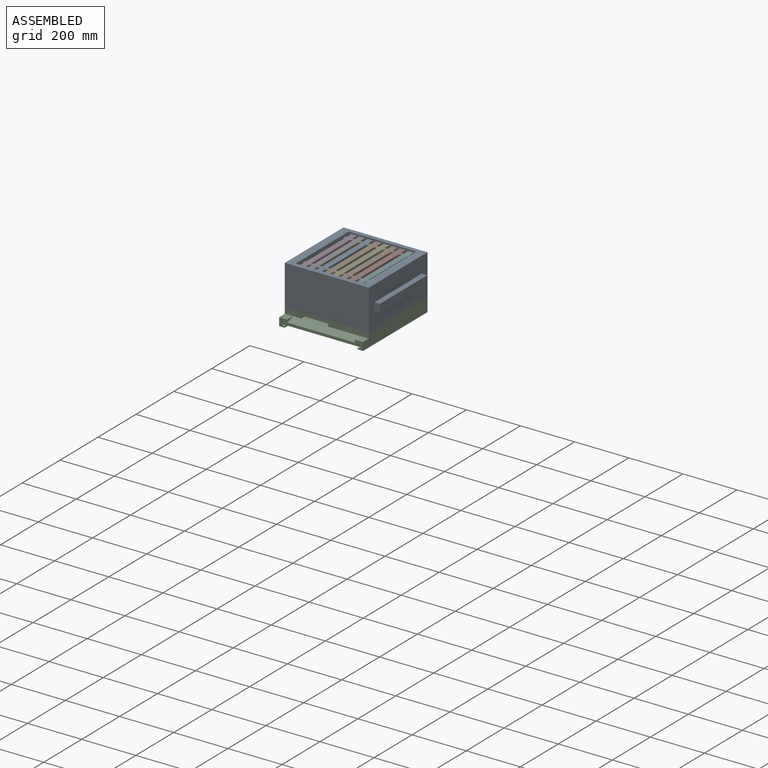
[diagram: assembled view]
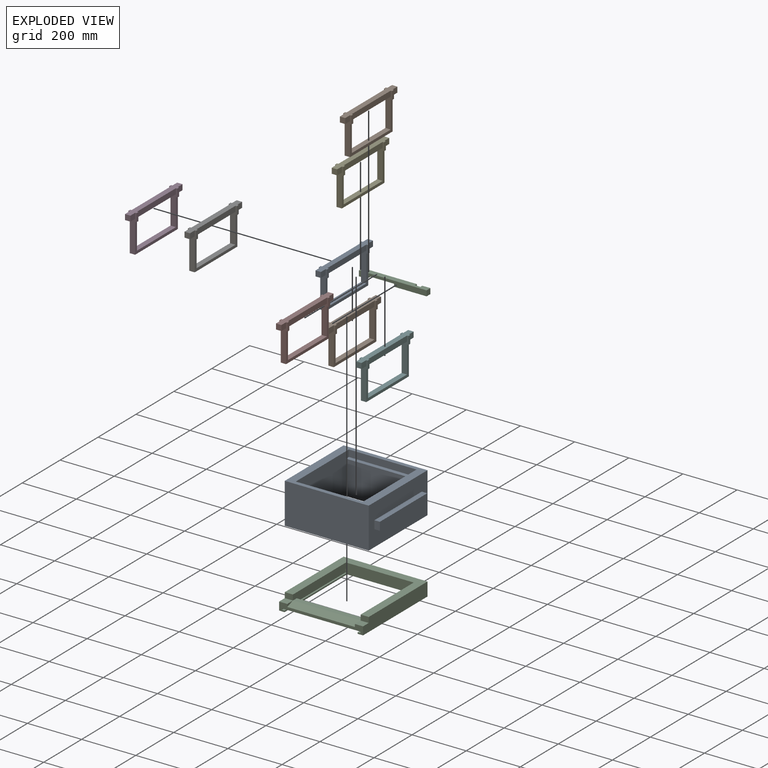
[diagram: exploded view]
GUIDED TOUR — MATED ASSEMBLY (Onshape document d58939f9e8c85b8631f3f8b9, AutoMate assembly d58939f9e8c85b8631f3f8b9_389e96e7b3c69d62c255b484_097b39c04459ce8ab4519b38_default)

This assembly has 11 components, labeled P0..P10 below (a component is one placed occurrence of a part; the same part can appear more than once), held together by 9 mates. A mate is a constraint between two components; its type names the relative motion it leaves free:
  FASTENED — locks the two components together rigidly (no relative motion).
Axis/direction vectors are unit vectors and 'through' points are millimeter coordinates, both in the assembly's world frame.

MATES
  1. FASTENED "Fastened 4": P3 <-> P6, direction (1.000, 0.000, 0.000) through (636.38, 176.40, 158.30) mm
  2. FASTENED "Fastened 4": P7 <-> P5, direction (1.000, 0.000, 0.000) through (816.38, 176.40, 158.30) mm
  3. FASTENED "Fastened 2": P0 <-> P10, direction (0.000, 0.000, -1.000) through (880.38, -86.10, 28.30) mm
  4. FASTENED "Fastened 1": P6 <-> P8, direction (1.000, 0.000, 0.000) through (666.38, 176.40, 158.30) mm
  5. FASTENED "Fastened 4": P4 <-> P9, direction (1.000, 0.000, 0.000) through (756.38, 176.40, 158.30) mm
  6. FASTENED "Fastened 3": P10 <-> P2, direction (1.000, 0.000, 0.000) through (600.38, -86.10, 18.30) mm
  7. FASTENED "Fastened 4": P8 <-> P1, direction (1.000, 0.000, 0.000) through (696.38, 176.40, 158.30) mm
  8. FASTENED "Fastened 6": P7 <-> P9, direction (-1.000, 0.000, 0.000) through (786.38, 176.40, 158.30) mm
  9. FASTENED "Fastened 5": P1 <-> P4, direction (1.000, 0.000, 0.000) through (726.38, -38.60, 158.30) mm

ASSEMBLY ORDER
  1. P8 — the base component [order verified]
  2. P1 [order verified]
  3. P0 [order verified]
  4. P4 [order verified]
  5. P9 [order verified]
  6. P7 [order verified]
  7. P5 [order verified]
  8. P6 [order verified]
  9. P3 [order verified]
  10. P10 [order verified]
  11. P2 [order verified]
Order-tag legend:
  [order verified] — this step's position reverses a verified removal order: the component was checked to insert without passing through the ones already placed.

Of the 11 components, 11 carry the full construction recipe — the FeatureScript program that regenerates the part's solid from scratch; the rest are supplied as boundary geometry only.
Each toured component is shown spotlighted twice — in the assembled view, then in the exploded view, where a leader line traces a displaced component back to its assembled socket (saturated green if recipe-attached, orange if geometry-only; every other component desaturated gray) — followed by its recipe or geometry summary and the mates that hold it.
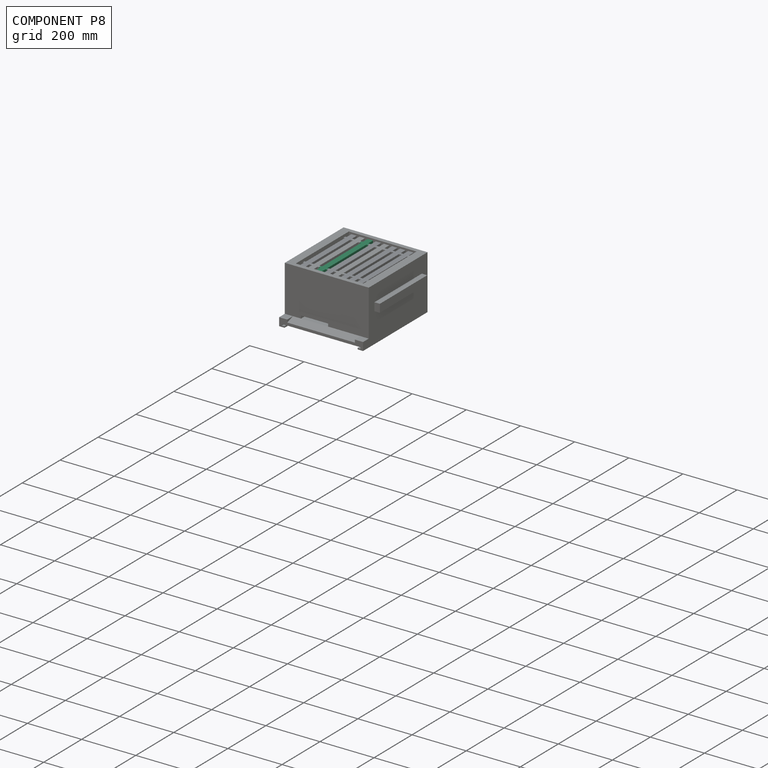
[diagram: component P8 — assembled]
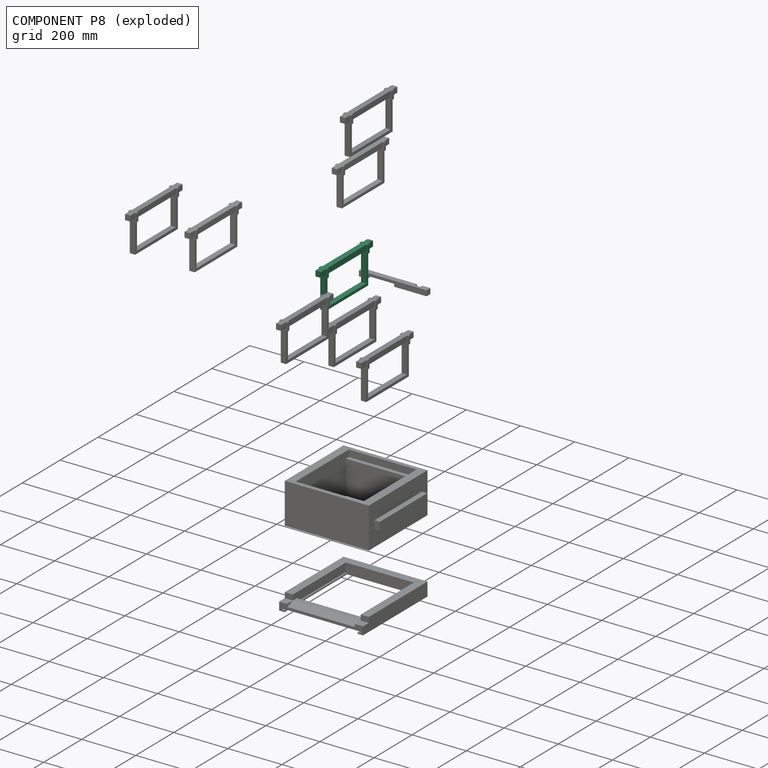
[diagram: component P8 — exploded]
COMPONENT P8 — same part as P1 (CADFS 00818178); its construction recipe is shown at P1.
Held by: FASTENED mate "Fastened 1" to P6; FASTENED mate "Fastened 4" to P1.
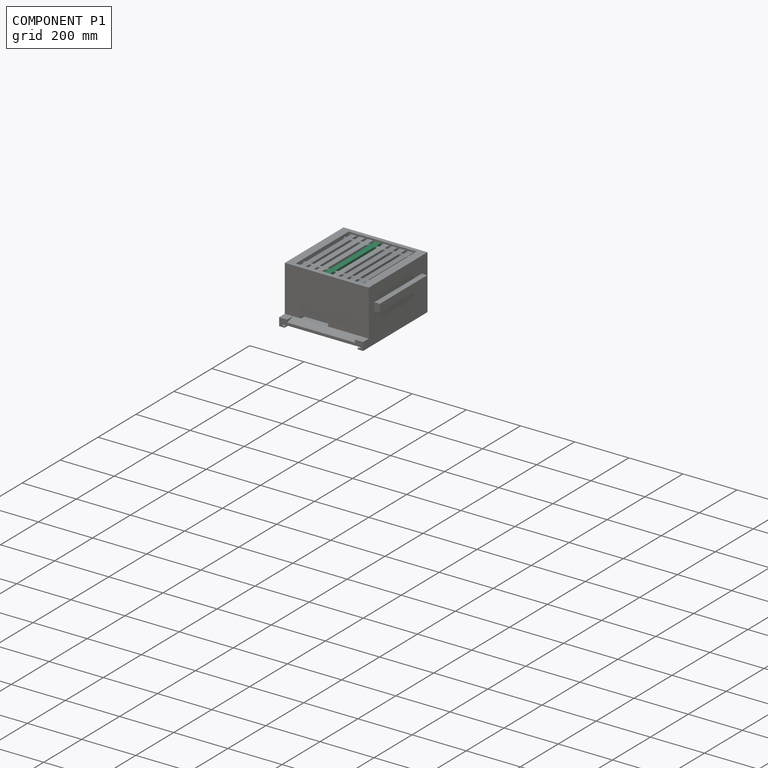
[diagram: component P1 — assembled]
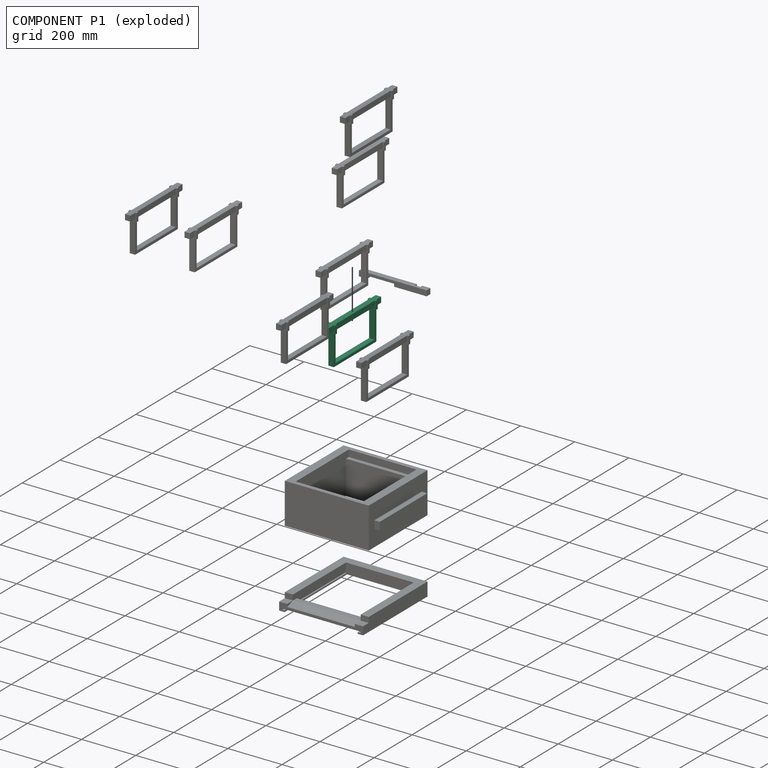
[diagram: component P1 — exploded]
COMPONENT P1 — recipe-attached (CADFS 00818178, mesh-verified: the recipe's output STEP matches this component's geometry to below the mesh-comparison resolution (tessellation chordal tolerance ~0.465 mm)).
Held by: FASTENED mate "Fastened 4" to P8; FASTENED mate "Fastened 5" to P4.
Construction recipe (FeatureScript — the CAD program that rebuilds this solid; sketch coordinates are in the units given by the * unit suffixes, e.g. mm):

FeatureScript 1511;
import(path : "onshape/std/geometry.fs", version : "1511.0");
import(path : "onshape/std/common.fs", version : "1511.0");
const mm = millimeter;
const VERTEX = EntityType.VERTEX;
const EDGE = EntityType.EDGE;
const FACE = EntityType.FACE;
const BODY = EntityType.BODY;
function v(x, y){return vector(x, y);}
function OD(order){return orderDisambiguation(order);}
function OSD(set){return originalSetDisambiguation(set);}
function TD(topology){return topologyDisambiguation(topology);}
function TDD(query){return trueDependencyDisambiguation(query);}
function sQuery(a, b, c) {return sketchEntityQuery(a, b, c);}

annotation { "Feature Type Name" : "Feature", "Feature Type Description" : "" }
export const myFeature = defineFeature(function(context is Context, id is Id, definition is map)
    precondition{}
    {
        {
            var Q0;
            Q0=qCreatedBy(makeId("Top.planeOp"),FACE);
            var sketch = newSketch(context, id + "F0", { "sketchPlane" : qUnion([Q0])});
            skLineSegment(sketch, "E0.bottom", {"start": v(10, -137.5) * mm, "end": v(-10, -137.5) * mm});
            skLineSegment(sketch, "E0.top", {"start": v(10, 137.5) * mm, "end": v(-10, 137.5) * mm});
            skLineSegment(sketch, "E0.left", {"start": v(10, -137.5) * mm, "end": v(10, 137.5) * mm});
            skLineSegment(sketch, "E0.right", {"start": v(-10, -137.5) * mm, "end": v(-10, 137.5) * mm});
            skPoint(sketch, "E0.middle", {"position": v(0, 0) * mm});
            skSolve(sketch);
        }
        {
            var Q0;
            Q0=makeQuery(id+"F0.imprint","IMPRINT",FACE,{"disambiguationData":[TD([[makeQuery(id+"F0.imprint","IMPRINT",EDGE,{"derivedFrom":sQuery(id+"F0.wireOp",EDGE,"E0.bottom")}),-1.0]])]});
            extrude(context, id + "F1", {"entities" : qUnion([Q0]), "endBound" : BoundingType.SYMMETRIC, "depth" : 20 * mm, "offsetDistance" : 25 * mm});
        }
        {
            var Q0;
            Q0=makeQuery(id+"F1.opExtrude","SWEPT_FACE",FACE,{"disambiguationData":[OSD([sQuery(id+"F0.wireOp",EDGE,"E0.bottom")])]});
            cPlane(context, id + "F2", {"entities" : qUnion([Q0]), "cplaneType" : CPlaneType.OFFSET, "offset" : 25 * mm, "oppositeDirection" : true, "width" : 150 * mm, "height" : 150 * mm});
        }
        {
            var Q0;
            Q0=qCreatedBy(id+"F2.planeOp",FACE);
            var sketch = newSketch(context, id + "F3", { "sketchPlane" : qUnion([Q0])});
            skLineSegment(sketch, "E1.top", {"start": v(15, 10) * mm, "end": v(-15, 10) * mm});
            skPoint(sketch, "E1.middle", {"position": v(0, 0) * mm});
            skLineSegment(sketch, "E2.bottom", {"start": v(-10, 0) * mm, "end": v(10, 0) * mm});
            skLineSegment(sketch, "E2.top", {"start": v(-10, -130) * mm, "end": v(10, -130) * mm});
            skLineSegment(sketch, "E2.left", {"start": v(-10, 0) * mm, "end": v(-10, -130) * mm});
            skLineSegment(sketch, "E2.right", {"start": v(10, 0) * mm, "end": v(10, -130) * mm});
            skLineSegment(sketch, "E3", {"start": v(-15, 10) * mm, "end": v(-15, -20) * mm});
            skLineSegment(sketch, "E4", {"start": v(-15, -20) * mm, "end": v(15, -20) * mm});
            skLineSegment(sketch, "E5", {"start": v(15, -20) * mm, "end": v(15, 10) * mm});
            skSolve(sketch);
        }
        {
            var Q0;
            {var subQ5=sQuery(id+"F3.wireOp",EDGE,"E2.top");Q0=makeQuery(id+"F3.imprint","IMPRINT",FACE,{"disambiguationData":[TD([[makeQuery(id+"F3.imprint","IMPRINT",EDGE,{"derivedFrom":subQ5}),1.0]])]});}
            var Q1;
            {var subQ5=sQuery(id+"F3.wireOp",EDGE,"E2.bottom");Q1=makeQuery(id+"F3.imprint","IMPRINT",FACE,{"disambiguationData":[TD([[makeQuery(id+"F3.imprint","IMPRINT",EDGE,{"derivedFrom":subQ5}),-1.0]])]});}
            var Q2;
            Q2=makeQuery(id+"F3.imprint","IMPRINT",FACE,{"disambiguationData":[TD([[makeQuery(id+"F3.imprint","IMPRINT",EDGE,{"derivedFrom":sQuery(id+"F3.wireOp",EDGE,"E1.top")}),1.0]])]});
            extrude(context, id + "F4", {"entities" : qUnion([Q0, Q1, Q2]), "operationType" : NewBodyOperationType.ADD, "oppositeDirection" : true, "depth" : 10 * mm, "offsetDistance" : 25 * mm});
        }
        {
            var Q0;
            Q0=makeQuery(id+"F1.opExtrude","SWEPT_FACE",FACE,{"disambiguationData":[OSD([sQuery(id+"F0.wireOp",EDGE,"E0.top")])]});
            cPlane(context, id + "F5", {"entities" : qUnion([Q0]), "cplaneType" : CPlaneType.OFFSET, "offset" : 25 * mm, "oppositeDirection" : true, "width" : 150 * mm, "height" : 150 * mm});
        }
        {
            var Q0;
            Q0=qCreatedBy(id+"F5.planeOp",FACE);
            var sketch = newSketch(context, id + "F6", { "sketchPlane" : qUnion([Q0])});
            skLineSegment(sketch, "E6.top", {"start": v(15, 10) * mm, "end": v(-15, 10) * mm});
            skPoint(sketch, "E6.middle", {"position": v(0, 0) * mm});
            skLineSegment(sketch, "E7.bottom", {"start": v(-10, 0) * mm, "end": v(10, 0) * mm});
            skLineSegment(sketch, "E7.top", {"start": v(-10, -130) * mm, "end": v(10, -130) * mm});
            skLineSegment(sketch, "E7.left", {"start": v(-10, 0) * mm, "end": v(-10, -130) * mm});
            skLineSegment(sketch, "E7.right", {"start": v(10, 0) * mm, "end": v(10, -130) * mm});
            skLineSegment(sketch, "E8", {"start": v(-15, 10) * mm, "end": v(-15, -20) * mm});
            skLineSegment(sketch, "E9", {"start": v(-15, -20) * mm, "end": v(15, -20) * mm});
            skLineSegment(sketch, "E10", {"start": v(15, -20) * mm, "end": v(15, 10) * mm});
            skSolve(sketch);
        }
        {
            var Q0;
            {var subQ5=sQuery(id+"F6.wireOp",EDGE,"E7.bottom");Q0=makeQuery(id+"F6.imprint","IMPRINT",FACE,{"disambiguationData":[TD([[makeQuery(id+"F6.imprint","IMPRINT",EDGE,{"derivedFrom":subQ5}),-1.0]])]});}
            var Q1;
            {var subQ5=sQuery(id+"F6.wireOp",EDGE,"E7.top");Q1=makeQuery(id+"F6.imprint","IMPRINT",FACE,{"disambiguationData":[TD([[makeQuery(id+"F6.imprint","IMPRINT",EDGE,{"derivedFrom":subQ5}),1.0]])]});}
            var Q2;
            Q2=makeQuery(id+"F6.imprint","IMPRINT",FACE,{"disambiguationData":[TD([[makeQuery(id+"F6.imprint","IMPRINT",EDGE,{"derivedFrom":sQuery(id+"F6.wireOp",EDGE,"E6.top")}),1.0]])]});
            extrude(context, id + "F7", {"entities" : qUnion([Q0, Q1, Q2]), "operationType" : NewBodyOperationType.ADD, "oppositeDirection" : true, "depth" : 10 * mm, "offsetDistance" : 25 * mm});
        }
        {
            var Q0;
            Q0=makeQuery(id+"F7.opExtrude","SWEPT_FACE",FACE,{"disambiguationData":[OSD([sQuery(id+"F6.wireOp",EDGE,"E7.top")])]});
            var sketch = newSketch(context, id + "F8", { "sketchPlane" : qUnion([Q0])});
            skLineSegment(sketch, "E11.bottom", {"start": v(10, -102.5) * mm, "end": v(-10, -102.5) * mm});
            skLineSegment(sketch, "E11.top", {"start": v(10, 102.5) * mm, "end": v(-10, 102.5) * mm});
            skLineSegment(sketch, "E11.left", {"start": v(10, -102.5) * mm, "end": v(10, 102.5) * mm});
            skLineSegment(sketch, "E11.right", {"start": v(-10, -102.5) * mm, "end": v(-10, 102.5) * mm});
            skSolve(sketch);
        }
        {
            var Q0;
            Q0=makeQuery(id+"F8.imprint","IMPRINT",FACE,{"disambiguationData":[TD([[makeQuery(id+"F8.imprint","IMPRINT",EDGE,{"derivedFrom":sQuery(id+"F8.wireOp",EDGE,"E11.bottom")}),-1.0]])]});
            extrude(context, id + "F9", {"entities" : qUnion([Q0]), "operationType" : NewBodyOperationType.ADD, "oppositeDirection" : true, "depth" : 10 * mm, "offsetDistance" : 25 * mm});
        }
        {
            var Q0;
            Q0=qCreatedBy(makeId("Top.planeOp"),FACE);
            var sketch = newSketch(context, id + "F10", { "sketchPlane" : qUnion([Q0])});
            skLineSegment(sketch, "E12.bottom", {"start": v(2.5, -110) * mm, "end": v(-2.5, -110) * mm});
            skLineSegment(sketch, "E12.top", {"start": v(2.5, 110) * mm, "end": v(-2.5, 110) * mm});
            skLineSegment(sketch, "E12.left", {"start": v(2.5, -110) * mm, "end": v(2.5, 110) * mm});
            skLineSegment(sketch, "E12.right", {"start": v(-2.5, -110) * mm, "end": v(-2.5, 110) * mm});
            skPoint(sketch, "E12.middle", {"position": v(0, 0) * mm});
            skSolve(sketch);
        }
        {
            var Q0;
            Q0 = qSketchRegion(id + "F10", true);
            extrude(context, id + "F11", {"entities" : qUnion([Q0]), "operationType" : NewBodyOperationType.ADD, "oppositeDirection" : true, "depth" : 15 * mm, "offsetDistance" : 25 * mm});
        }
    });
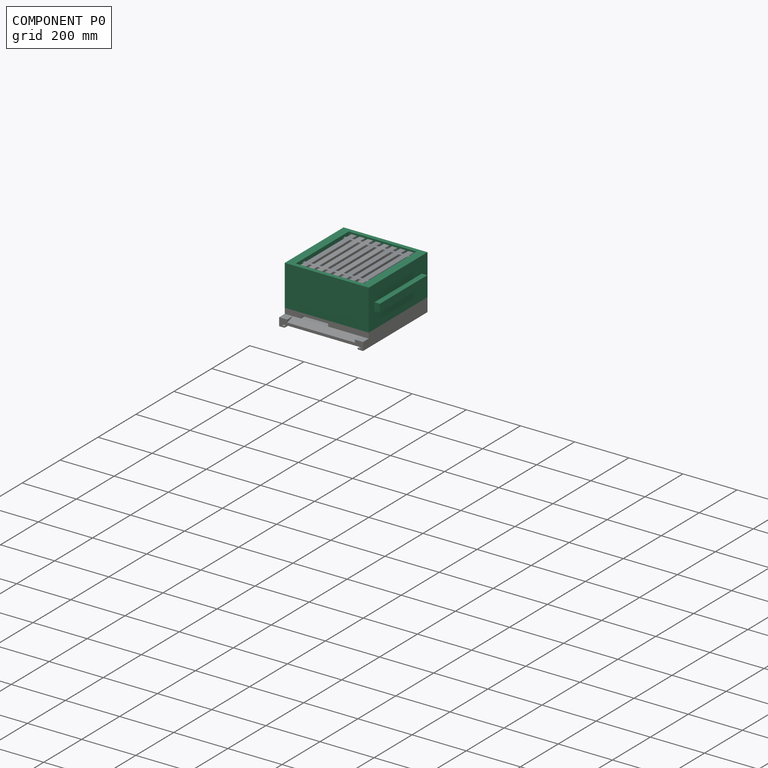
[diagram: component P0 — assembled]
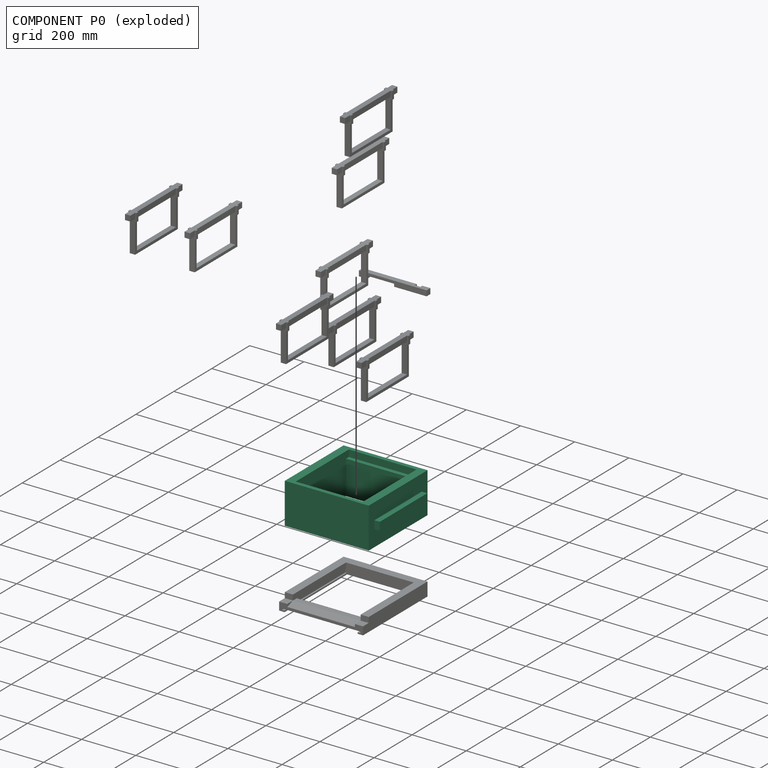
[diagram: component P0 — exploded]
COMPONENT P0 — recipe-attached (CADFS 00818176, mesh-verified: the recipe's output STEP matches this component's geometry to below the mesh-comparison resolution (tessellation chordal tolerance ~0.737 mm)).
Held by: FASTENED mate "Fastened 2" to P10.
Construction recipe (FeatureScript — the CAD program that rebuilds this solid; sketch coordinates are in the units given by the * unit suffixes, e.g. mm):

FeatureScript 1511;
import(path : "onshape/std/geometry.fs", version : "1511.0");
import(path : "onshape/std/common.fs", version : "1511.0");
const mm = millimeter;
const VERTEX = EntityType.VERTEX;
const EDGE = EntityType.EDGE;
const FACE = EntityType.FACE;
const BODY = EntityType.BODY;
function v(x, y){return vector(x, y);}
function OD(order){return orderDisambiguation(order);}
function OSD(set){return originalSetDisambiguation(set);}
function TD(topology){return topologyDisambiguation(topology);}
function TDD(query){return trueDependencyDisambiguation(query);}
function sQuery(a, b, c) {return sketchEntityQuery(a, b, c);}

annotation { "Feature Type Name" : "Feature", "Feature Type Description" : "" }
export const myFeature = defineFeature(function(context is Context, id is Id, definition is map)
    precondition{}
    {
        {
            var Q0;
            Q0=qCreatedBy(makeId("Top.planeOp"),FACE);
            var sketch = newSketch(context, id + "F0", { "sketchPlane" : qUnion([Q0])});
            skLineSegment(sketch, "E0.bottom", {"start": v(125, -125) * mm, "end": v(-125, -125) * mm});
            skLineSegment(sketch, "E0.top", {"start": v(125, 125) * mm, "end": v(-125, 125) * mm});
            skLineSegment(sketch, "E0.left", {"start": v(125, -125) * mm, "end": v(125, 125) * mm});
            skLineSegment(sketch, "E0.right", {"start": v(-125, -125) * mm, "end": v(-125, 125) * mm});
            skPoint(sketch, "E0.middle", {"position": v(0, 0) * mm});
            skLineSegment(sketch, "E1.bottom", {"start": v(155, -155) * mm, "end": v(-155, -155) * mm});
            skLineSegment(sketch, "E1.top", {"start": v(155, 155) * mm, "end": v(-155, 155) * mm});
            skLineSegment(sketch, "E1.left", {"start": v(155, -155) * mm, "end": v(155, 155) * mm});
            skLineSegment(sketch, "E1.right", {"start": v(-155, -155) * mm, "end": v(-155, 155) * mm});
            skSolve(sketch);
        }
        {
            var Q0;
            Q0=makeQuery(id+"F0.imprint","IMPRINT",FACE,{"disambiguationData":[TD([[makeQuery(id+"F0.imprint","IMPRINT",EDGE,{"derivedFrom":sQuery(id+"F0.wireOp",EDGE,"E0.bottom")}),1.0]])]});
            extrude(context, id + "F1", {"entities" : qUnion([Q0]), "endBound" : BoundingType.SYMMETRIC, "depth" : 150 * mm, "offsetDistance" : 25.4 * mm});
        }
        {
            var Q0;
            Q0=makeQuery(id+"F1.opExtrude","CAP_FACE",FACE,{"disambiguationData":[OSD([sQuery(id+"F0.wireOp",EDGE,"E0.bottom"),sQuery(id+"F0.wireOp",EDGE,"E0.top"),sQuery(id+"F0.wireOp",EDGE,"E0.left"),sQuery(id+"F0.wireOp",EDGE,"E0.right"),sQuery(id+"F0.wireOp",EDGE,"E1.bottom"),sQuery(id+"F0.wireOp",EDGE,"E1.top"),sQuery(id+"F0.wireOp",EDGE,"E1.left"),sQuery(id+"F0.wireOp",EDGE,"E1.right")])],"isStart":false});
            cPlane(context, id + "F2", {"entities" : qUnion([Q0]), "cplaneType" : CPlaneType.OFFSET, "offset" : 0 * mm, "width" : 152.4 * mm, "height" : 152.4 * mm});
        }
        {
            var Q0;
            Q0=qCreatedBy(id+"F2.planeOp",FACE);
            var sketch = newSketch(context, id + "F3", { "sketchPlane" : qUnion([Q0])});
            skLineSegment(sketch, "E2.bottom", {"start": v(125, -140) * mm, "end": v(-125, -140) * mm});
            skLineSegment(sketch, "E2.top", {"start": v(125, 140) * mm, "end": v(-125, 140) * mm});
            skLineSegment(sketch, "E2.left", {"start": v(125, -140) * mm, "end": v(125, 140) * mm});
            skLineSegment(sketch, "E2.right", {"start": v(-125, -140) * mm, "end": v(-125, 140) * mm});
            skPoint(sketch, "E2.middle", {"position": v(0, 0) * mm});
            skSolve(sketch);
        }
        {
            var Q0;
            Q0=makeQuery(id+"F3.imprint","IMPRINT",FACE,{"disambiguationData":[TD([[makeQuery(id+"F3.imprint","IMPRINT",EDGE,{"derivedFrom":sQuery(id+"F3.wireOp",EDGE,"E2.bottom")}),-1.0]])]});
            extrude(context, id + "F4", {"entities" : qUnion([Q0]), "operationType" : NewBodyOperationType.REMOVE, "oppositeDirection" : true, "depth" : 25 * mm, "offsetDistance" : 25 * mm});
        }
        {
            var Q0;
            Q0=makeQuery(id+"F1.opExtrude","SWEPT_FACE",FACE,{"disambiguationData":[OSD([sQuery(id+"F0.wireOp",EDGE,"E1.right")])]});
            var sketch = newSketch(context, id + "F5", { "sketchPlane" : qUnion([Q0])});
            skLineSegment(sketch, "E3.bottom", {"start": v(125, -15) * mm, "end": v(-125, -15) * mm});
            skLineSegment(sketch, "E3.top", {"start": v(125, 15) * mm, "end": v(-125, 15) * mm});
            skLineSegment(sketch, "E3.left", {"start": v(125, -15) * mm, "end": v(125, 15) * mm});
            skLineSegment(sketch, "E3.right", {"start": v(-125, -15) * mm, "end": v(-125, 15) * mm});
            skPoint(sketch, "E3.middle", {"position": v(0, 0) * mm});
            skSolve(sketch);
        }
        {
            var Q0;
            Q0=makeQuery(id+"F5.imprint","IMPRINT",FACE,{"disambiguationData":[TD([[makeQuery(id+"F5.imprint","IMPRINT",EDGE,{"derivedFrom":sQuery(id+"F5.wireOp",EDGE,"E3.bottom")}),-1.0]])]});
            extrude(context, id + "F6", {"entities" : qUnion([Q0]), "operationType" : NewBodyOperationType.ADD, "depth" : 20 * mm, "offsetDistance" : 25 * mm});
        }
        {
            var Q0;
            Q0=makeQuery(id+"F1.opExtrude","SWEPT_FACE",FACE,{"disambiguationData":[OSD([sQuery(id+"F0.wireOp",EDGE,"E1.left")])]});
            var sketch = newSketch(context, id + "F7", { "sketchPlane" : qUnion([Q0])});
            skLineSegment(sketch, "E4.bottom", {"start": v(125, -15) * mm, "end": v(-125, -15) * mm});
            skLineSegment(sketch, "E4.top", {"start": v(125, 15) * mm, "end": v(-125, 15) * mm});
            skLineSegment(sketch, "E4.left", {"start": v(125, -15) * mm, "end": v(125, 15) * mm});
            skLineSegment(sketch, "E4.right", {"start": v(-125, -15) * mm, "end": v(-125, 15) * mm});
            skPoint(sketch, "E4.middle", {"position": v(0, 0) * mm});
            skSolve(sketch);
        }
        {
            var Q0;
            Q0 = qSketchRegion(id + "F7", true);
            extrude(context, id + "F8", {"entities" : qUnion([Q0]), "operationType" : NewBodyOperationType.ADD, "depth" : 20 * mm, "offsetDistance" : 25 * mm});
        }
    });
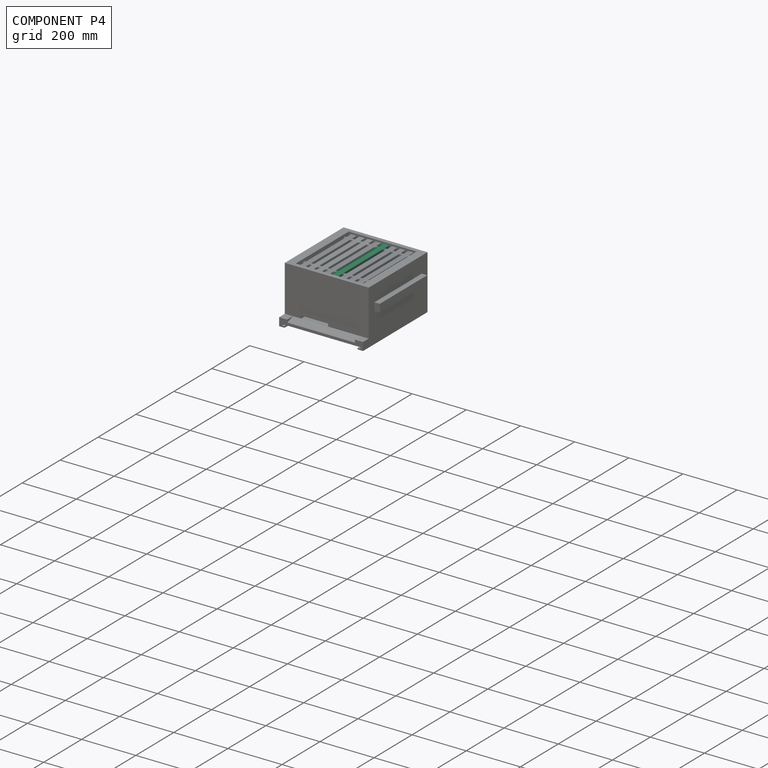
[diagram: component P4 — assembled]
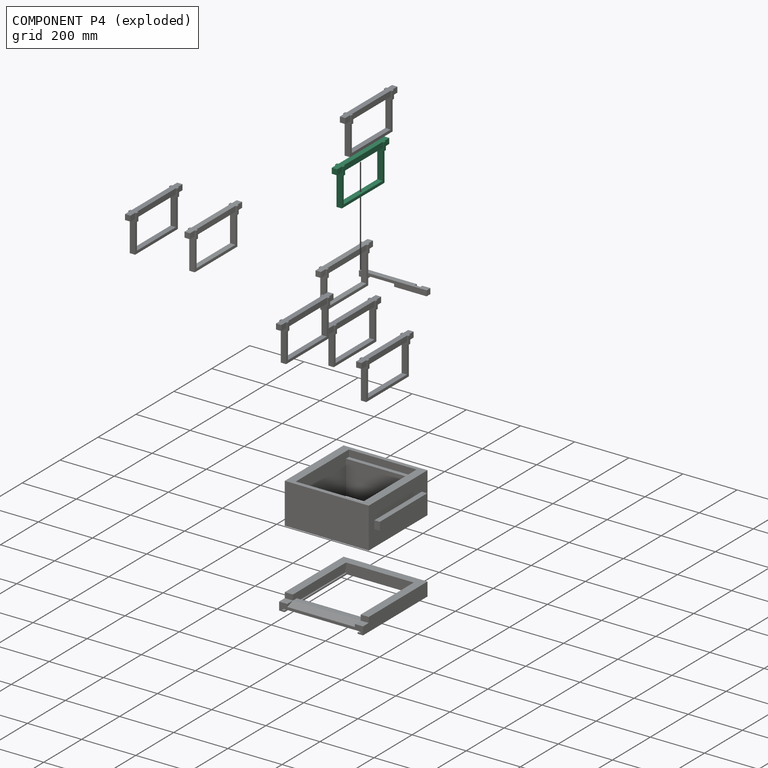
[diagram: component P4 — exploded]
COMPONENT P4 — same part as P1 (CADFS 00818178); its construction recipe is shown at P1.
Held by: FASTENED mate "Fastened 4" to P9; FASTENED mate "Fastened 5" to P1.
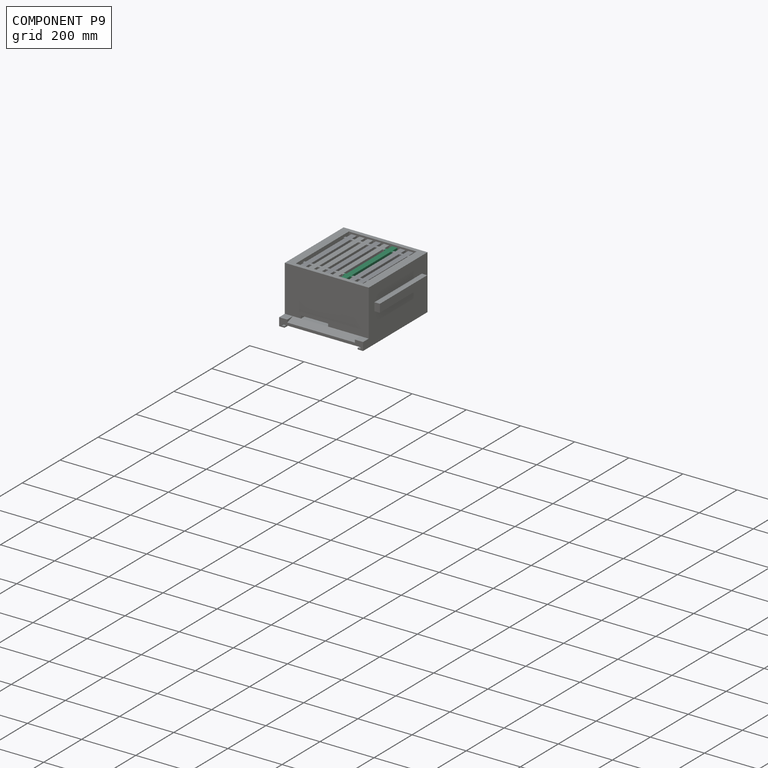
[diagram: component P9 — assembled]
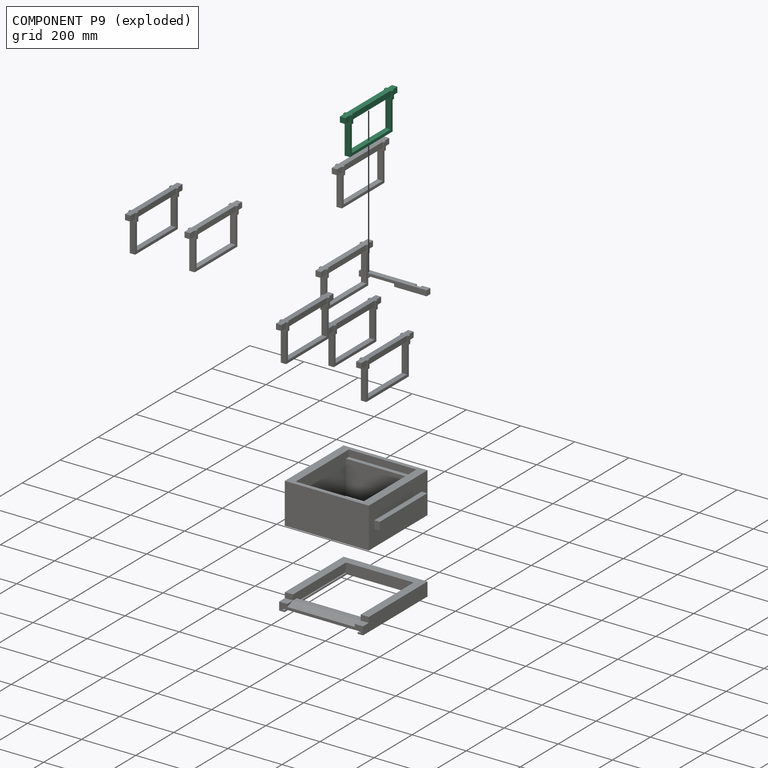
[diagram: component P9 — exploded]
COMPONENT P9 — same part as P1 (CADFS 00818178); its construction recipe is shown at P1.
Held by: FASTENED mate "Fastened 4" to P4; FASTENED mate "Fastened 6" to P7.
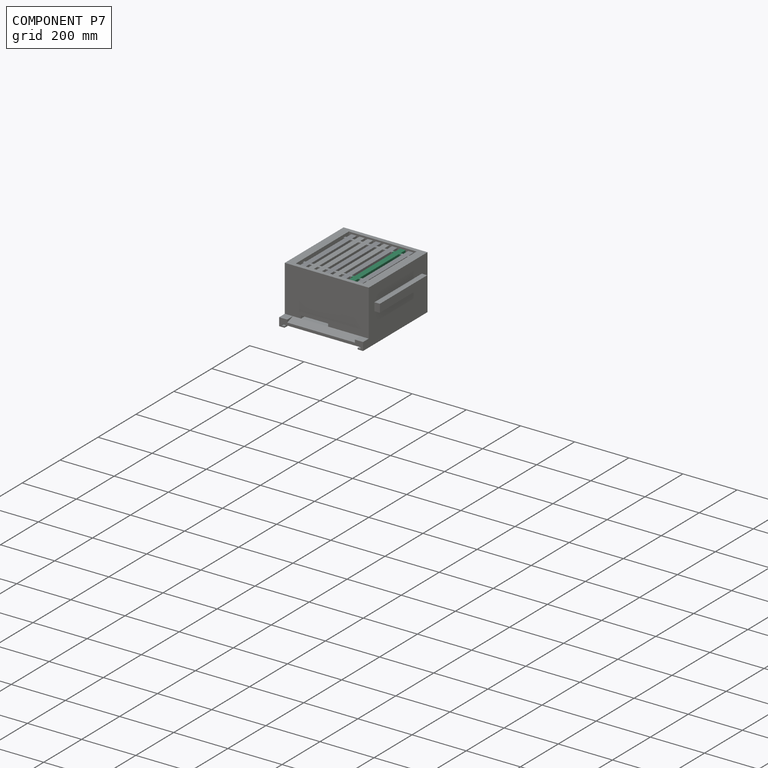
[diagram: component P7 — assembled]
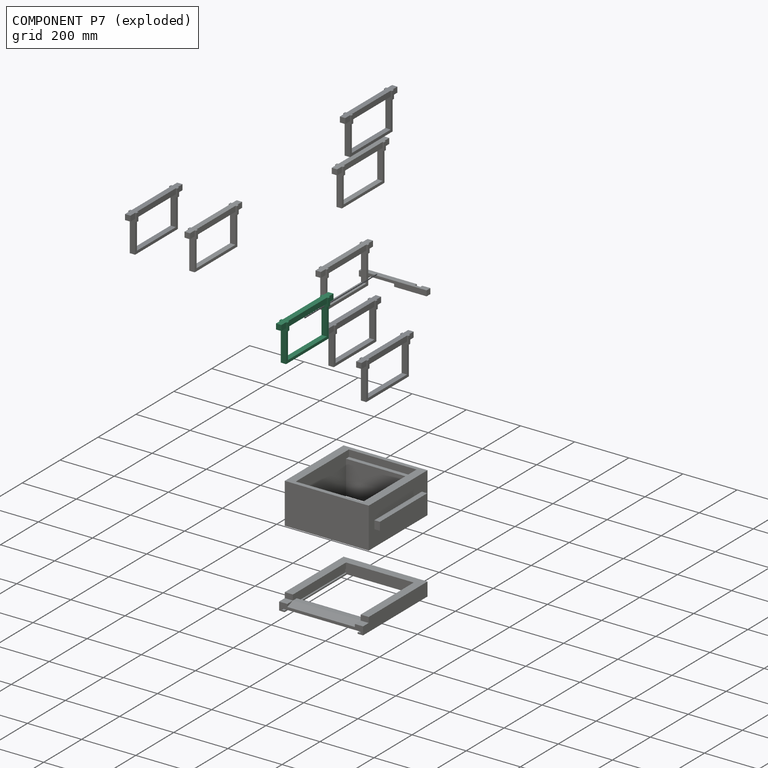
[diagram: component P7 — exploded]
COMPONENT P7 — same part as P1 (CADFS 00818178); its construction recipe is shown at P1.
Held by: FASTENED mate "Fastened 4" to P5; FASTENED mate "Fastened 6" to P9.
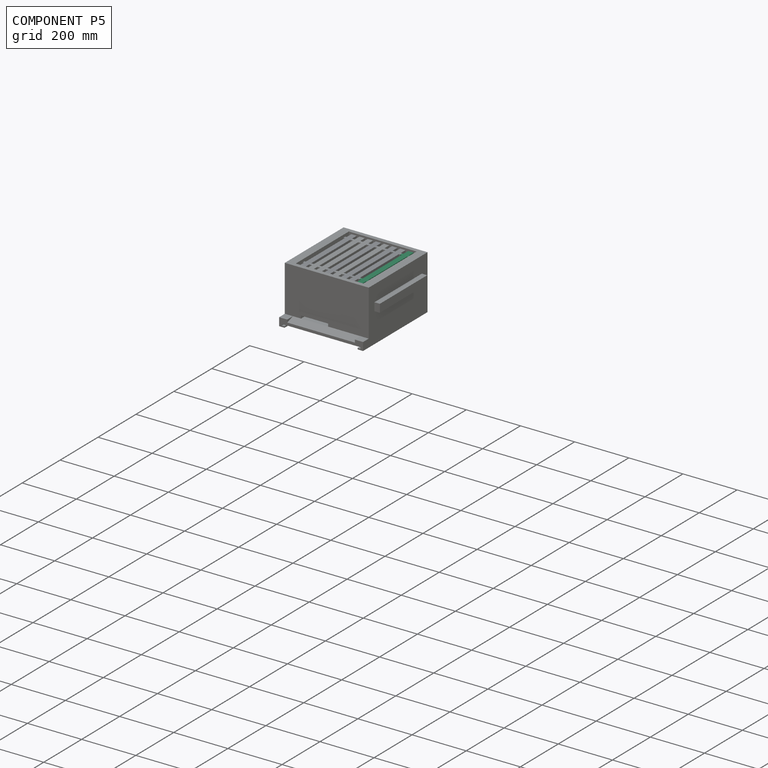
[diagram: component P5 — assembled]
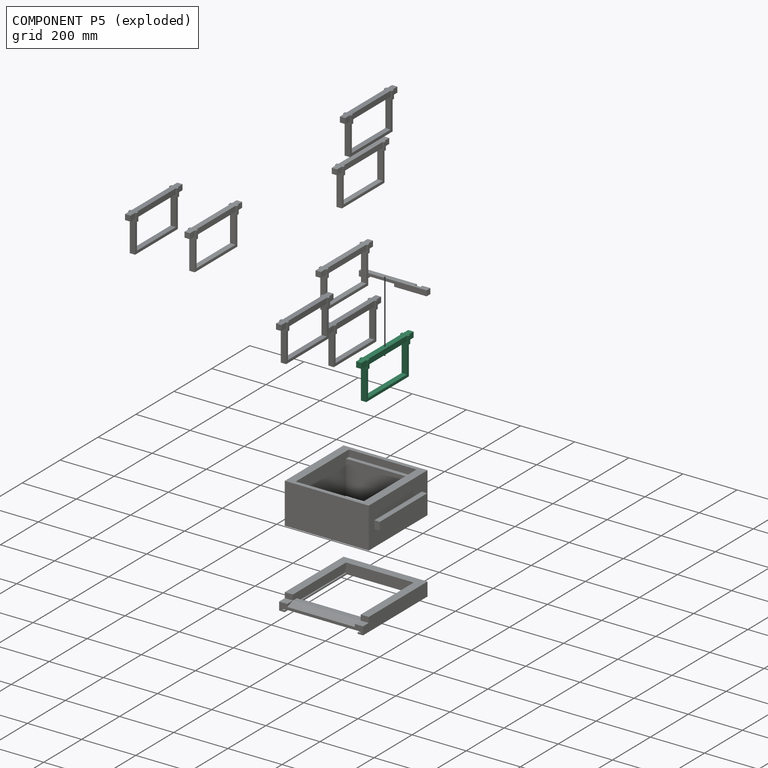
[diagram: component P5 — exploded]
COMPONENT P5 — same part as P1 (CADFS 00818178); its construction recipe is shown at P1.
Held by: FASTENED mate "Fastened 4" to P7.
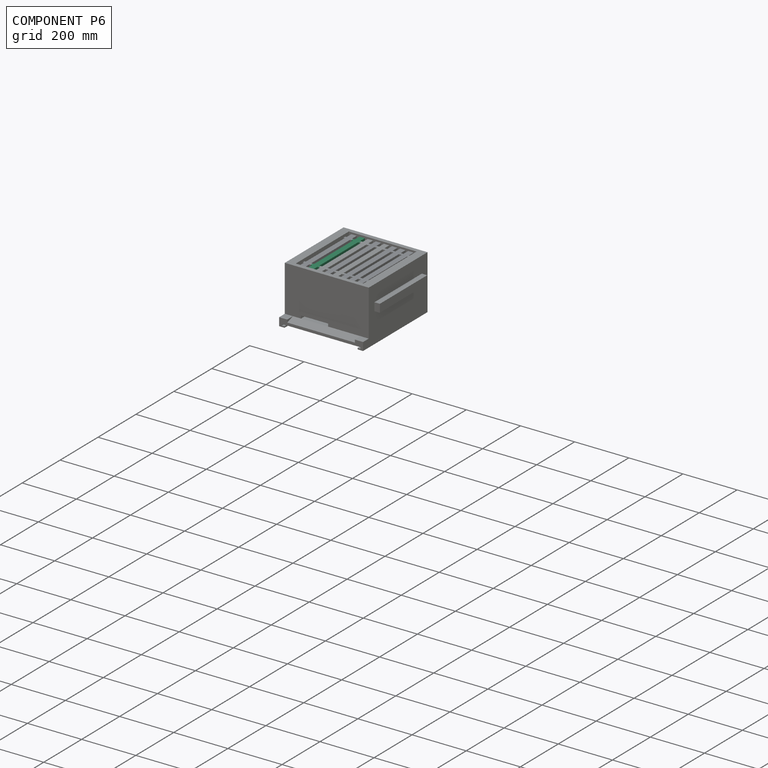
[diagram: component P6 — assembled]
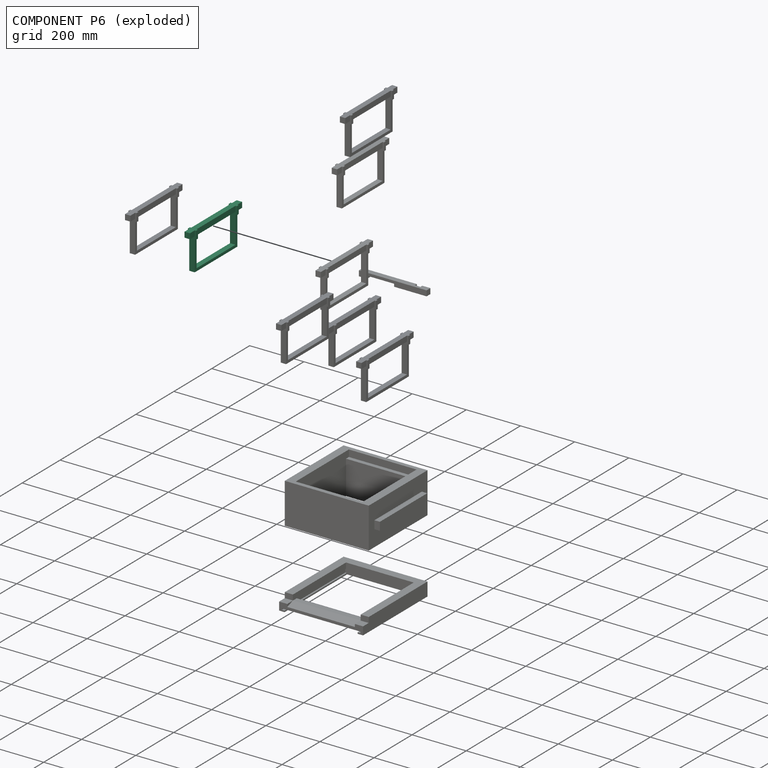
[diagram: component P6 — exploded]
COMPONENT P6 — same part as P1 (CADFS 00818178); its construction recipe is shown at P1.
Held by: FASTENED mate "Fastened 4" to P3; FASTENED mate "Fastened 1" to P8.
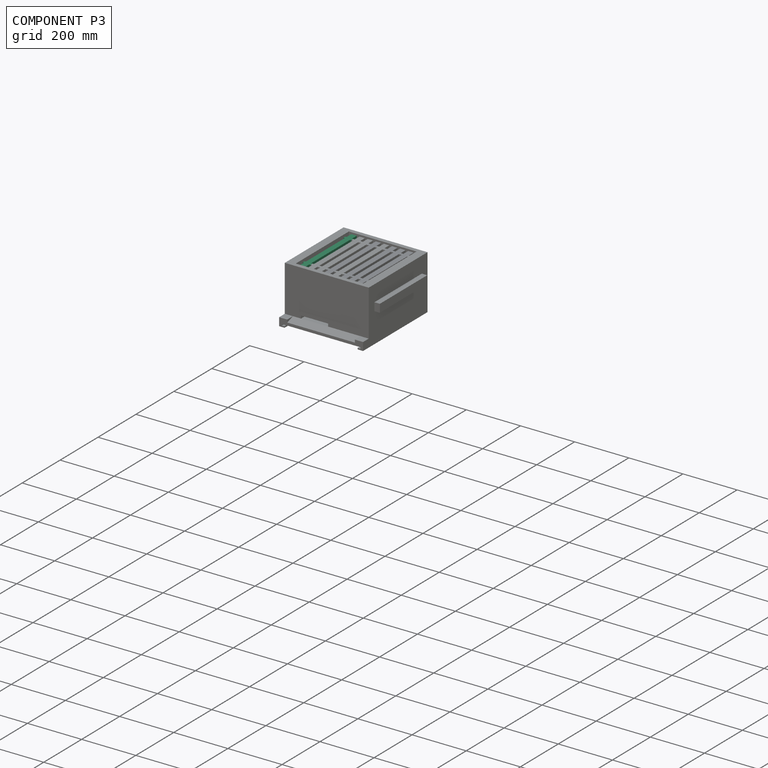
[diagram: component P3 — assembled]
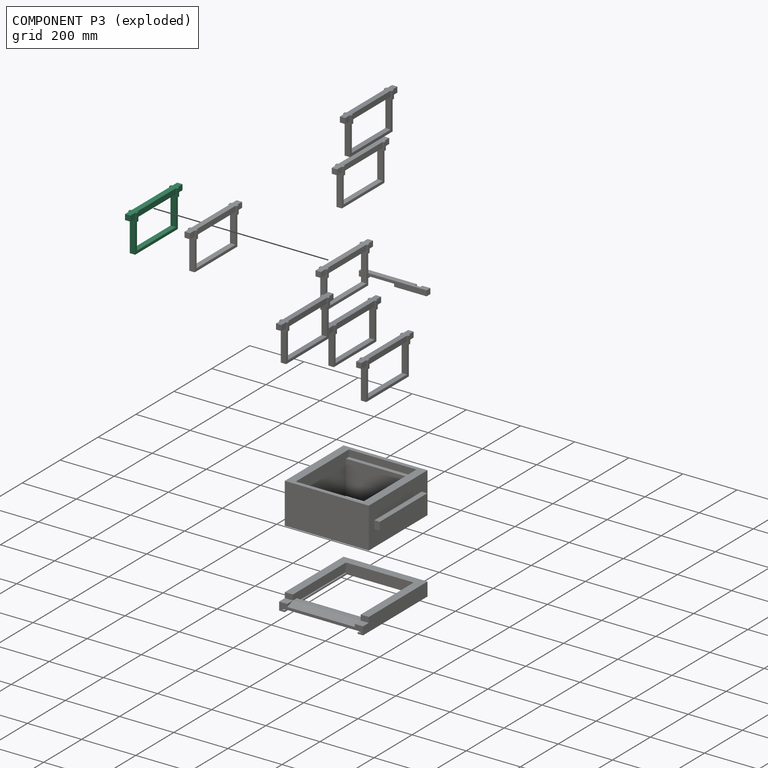
[diagram: component P3 — exploded]
COMPONENT P3 — same part as P1 (CADFS 00818178); its construction recipe is shown at P1.
Held by: FASTENED mate "Fastened 4" to P6.
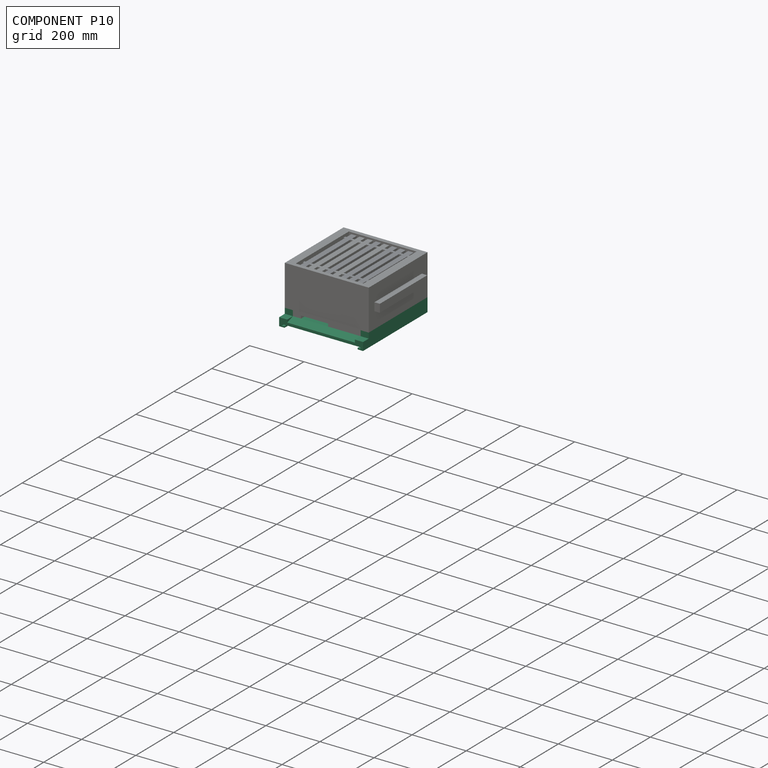
[diagram: component P10 — assembled]
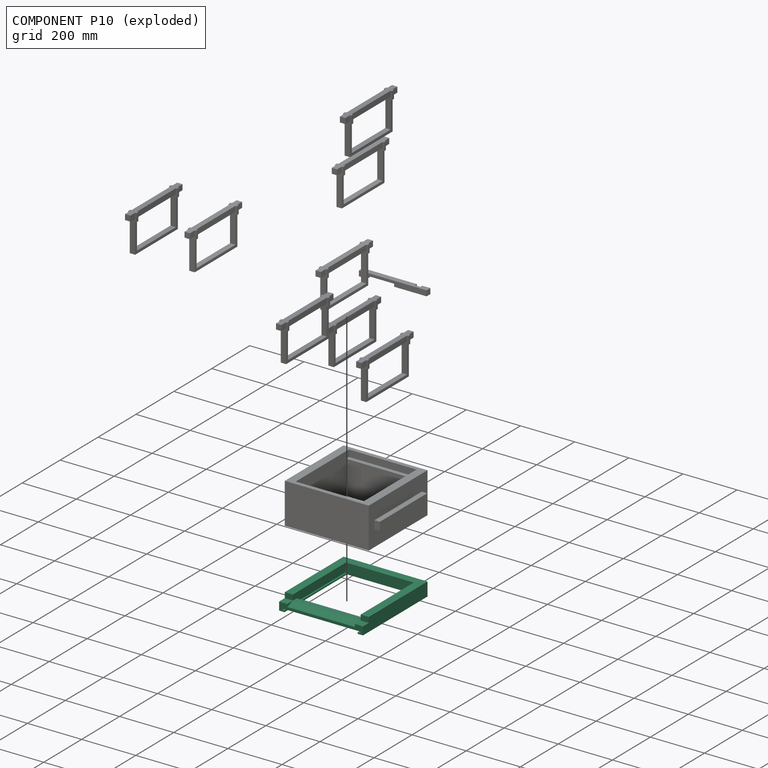
[diagram: component P10 — exploded]
COMPONENT P10 — recipe-attached (CADFS 00818177, mesh-verified: the recipe's output STEP matches this component's geometry to below the mesh-comparison resolution (tessellation chordal tolerance ~0.694 mm)).
Held by: FASTENED mate "Fastened 2" to P0; FASTENED mate "Fastened 3" to P2.
Construction recipe (FeatureScript — the CAD program that rebuilds this solid; sketch coordinates are in the units given by the * unit suffixes, e.g. mm):

FeatureScript 1511;
import(path : "onshape/std/geometry.fs", version : "1511.0");
import(path : "onshape/std/common.fs", version : "1511.0");
const mm = millimeter;
const VERTEX = EntityType.VERTEX;
const EDGE = EntityType.EDGE;
const FACE = EntityType.FACE;
const BODY = EntityType.BODY;
function v(x, y){return vector(x, y);}
function OD(order){return orderDisambiguation(order);}
function OSD(set){return originalSetDisambiguation(set);}
function TD(topology){return topologyDisambiguation(topology);}
function TDD(query){return trueDependencyDisambiguation(query);}
function sQuery(a, b, c) {return sketchEntityQuery(a, b, c);}

annotation { "Feature Type Name" : "Feature", "Feature Type Description" : "" }
export const myFeature = defineFeature(function(context is Context, id is Id, definition is map)
    precondition{}
    {
        {
            var Q0;
            Q0=qCreatedBy(makeId("Top.planeOp"),FACE);
            var sketch = newSketch(context, id + "F0", { "sketchPlane" : qUnion([Q0])});
            skLineSegment(sketch, "E0.bottom", {"start": v(155, -155) * mm, "end": v(-155, -155) * mm});
            skLineSegment(sketch, "E0.top", {"start": v(155, 155) * mm, "end": v(-155, 155) * mm});
            skLineSegment(sketch, "E0.left", {"start": v(155, -155) * mm, "end": v(155, 155) * mm});
            skLineSegment(sketch, "E0.right", {"start": v(-155, -155) * mm, "end": v(-155, 155) * mm});
            skPoint(sketch, "E0.middle", {"position": v(0, 0) * mm});
            skLineSegment(sketch, "E1.bottom", {"start": v(-155, -155) * mm, "end": v(155, -155) * mm});
            skLineSegment(sketch, "E1.top", {"start": v(-155, -185) * mm, "end": v(155, -185) * mm});
            skLineSegment(sketch, "E1.left", {"start": v(-155, -155) * mm, "end": v(-155, -185) * mm});
            skLineSegment(sketch, "E1.right", {"start": v(155, -155) * mm, "end": v(155, -185) * mm});
            skLineSegment(sketch, "E2.bottom", {"start": v(125, -125) * mm, "end": v(-125, -125) * mm});
            skLineSegment(sketch, "E2.top", {"start": v(125, 125) * mm, "end": v(-125, 125) * mm});
            skLineSegment(sketch, "E2.left", {"start": v(125, -125) * mm, "end": v(125, 125) * mm});
            skLineSegment(sketch, "E2.right", {"start": v(-125, -125) * mm, "end": v(-125, 125) * mm});
            skLineSegment(sketch, "E3", {"start": v(-125, -125) * mm, "end": v(-125, -155) * mm});
            skLineSegment(sketch, "E4", {"start": v(125, -125) * mm, "end": v(125, -155) * mm});
            skSolve(sketch);
        }
        {
            var Q0;
            Q0=makeQuery(id+"F0.imprint","IMPRINT",FACE,{"disambiguationData":[TD([[makeQuery(id+"F0.imprint","IMPRINT",EDGE,{"derivedFrom":sQuery(id+"F0.wireOp",EDGE,"E0.top")}),1.0]])]});
            extrude(context, id + "F1", {"entities" : qUnion([Q0]), "depth" : 30 * mm, "offsetDistance" : 25 * mm});
        }
        {
            var Q0;
            Q0 = qSketchRegion(id + "F0", true);
            extrude(context, id + "F2", {"entities" : qUnion([Q0]), "operationType" : NewBodyOperationType.ADD, "depth" : 10 * mm, "offsetDistance" : 25 * mm});
        }
        {
            var Q0;
            Q0=makeQuery(id+"F0.imprint","IMPRINT",FACE,{"disambiguationData":[TD([[makeQuery(id+"F0.imprint","IMPRINT",EDGE,{"derivedFrom":sQuery(id+"F0.wireOp",EDGE,"E2.bottom")}),-1.0]])]});
            var Q1;
            Q1=makeQuery(id+"F0.imprint","IMPRINT",FACE,{"disambiguationData":[TD([[makeQuery(id+"F0.imprint","IMPRINT",EDGE,{"derivedFrom":sQuery(id+"F0.wireOp",EDGE,"E0.top")}),1.0]])]});
            var Q2;
            Q2=makeQuery(id+"F0.imprint","IMPRINT",FACE,{"disambiguationData":[TD([[makeQuery(id+"F0.imprint","IMPRINT",EDGE,{"derivedFrom":sQuery(id+"F0.wireOp",EDGE,"E1.top")}),1.0]])]});
            var Q3;
            Q3=makeQuery(id+"F0.imprint","IMPRINT",FACE,{"disambiguationData":[TD([[makeQuery(id+"F0.imprint","IMPRINT",EDGE,{"derivedFrom":sQuery(id+"F0.wireOp",EDGE,"E2.bottom")}),1.0]])]});
            extrude(context, id + "F3", {"entities" : qUnion([Q0, Q1, Q2, Q3]), "operationType" : NewBodyOperationType.ADD, "depth" : 10 * mm, "offsetDistance" : 25 * mm});
        }
        {
            var Q0;
            {var subQ0=sQuery(id+"F0.wireOp",EDGE,"E0.right");Q0=makeQuery(id+"F2.boolean.opBoolean","MERGE",FACE,{"derivedFrom":[makeQuery(id+"F1.opExtrude","SWEPT_FACE",FACE,{"disambiguationData":[OSD([subQ0])]}),makeQuery(id+"F2.opExtrude","SWEPT_FACE",FACE,{"disambiguationData":[OSD([subQ0,sQuery(id+"F0.wireOp",EDGE,"E1.left")])]})]});}
            cPlane(context, id + "F4", {"entities" : qUnion([Q0]), "cplaneType" : CPlaneType.OFFSET, "offset" : 30 * mm, "oppositeDirection" : true, "width" : 150 * mm, "height" : 150 * mm});
        }
        {
            var Q0;
            Q0=qCreatedBy(id+"F4.planeOp",FACE);
            var sketch = newSketch(context, id + "F5", { "sketchPlane" : qUnion([Q0])});
            skLineSegment(sketch, "E5", {"start": v(185, 0) * mm, "end": v(155, 10) * mm});
            skLineSegment(sketch, "E6", {"start": v(155, 10) * mm, "end": v(185, 10) * mm});
            skLineSegment(sketch, "E7", {"start": v(185, 10) * mm, "end": v(185, 0) * mm});
            skSolve(sketch);
        }
        {
            var Q0;
            Q0 = qSketchRegion(id + "F5", true);
            extrude(context, id + "F6", {"entities" : qUnion([Q0]), "operationType" : NewBodyOperationType.REMOVE, "oppositeDirection" : true, "depth" : 250 * mm, "offsetDistance" : 25 * mm});
        }
        {
            var Q0;
            {var subQ0=sQuery(id+"F0.wireOp",EDGE,"E1.right");var subQ1=sQuery(id+"F0.wireOp",EDGE,"E1.left");var subQ2=sQuery(id+"F0.wireOp",EDGE,"E1.top");var subQ3=sQuery(id+"F0.wireOp",EDGE,"E0.right");var subQ4=sQuery(id+"F0.wireOp",EDGE,"E0.left");var subQ5=sQuery(id+"F0.wireOp",EDGE,"E0.top");var subQ6=sQuery(id+"F0.wireOp",EDGE,"E4");var subQ7=sQuery(id+"F0.wireOp",EDGE,"E3");var subQ8=sQuery(id+"F0.wireOp",EDGE,"E2.right");var subQ9=sQuery(id+"F0.wireOp",EDGE,"E2.left");var subQ10=sQuery(id+"F0.wireOp",EDGE,"E2.top");var subQ11=sQuery(id+"F0.wireOp",EDGE,"E1.bottom");Q0=makeQuery(id+"F3.boolean.opBoolean","MERGE",FACE,{"derivedFrom":[makeQuery(id+"F2.boolean.opBoolean","MERGE",FACE,{"derivedFrom":[makeQuery(id+"F1.opExtrude","CAP_FACE",FACE,{"disambiguationData":[OSD([subQ5,subQ4,subQ3,subQ11,subQ10,subQ9,subQ8,subQ7,subQ6])],"isStart":true}),makeQuery(id+"F2.opExtrude","CAP_FACE",FACE,{"disambiguationData":[OSD([subQ5,subQ4,subQ3,subQ11,subQ2,subQ1,subQ0,subQ10,subQ9,subQ8,subQ7,subQ6])],"isStart":true})]}),makeQuery(id+"F3.opExtrude","CAP_FACE",FACE,{"disambiguationData":[OSD([subQ5,subQ4,subQ3,subQ2,subQ1,subQ0])],"isStart":true})]});}
            var sketch = newSketch(context, id + "F7", { "sketchPlane" : qUnion([Q0])});
            skLineSegment(sketch, "E8.bottom", {"start": v(135, -135) * mm, "end": v(-135, -135) * mm});
            skLineSegment(sketch, "E8.top", {"start": v(135, 135) * mm, "end": v(-135, 135) * mm});
            skLineSegment(sketch, "E8.left", {"start": v(135, -135) * mm, "end": v(135, 135) * mm});
            skLineSegment(sketch, "E8.right", {"start": v(-135, -135) * mm, "end": v(-135, 135) * mm});
            skPoint(sketch, "E8.middle", {"position": v(0, 0) * mm});
            skSolve(sketch);
        }
        {
            var Q0;
            Q0 = qSketchRegion(id + "F7", true);
            extrude(context, id + "F8", {"entities" : qUnion([Q0]), "operationType" : NewBodyOperationType.REMOVE, "oppositeDirection" : true, "depth" : 10 * mm, "offsetDistance" : 25 * mm});
        }
        {
            var Q0;
            {var subQ0=sQuery(id+"F0.wireOp",EDGE,"E1.right");var subQ1=sQuery(id+"F0.wireOp",EDGE,"E1.left");var subQ2=sQuery(id+"F0.wireOp",EDGE,"E1.top");var subQ3=sQuery(id+"F0.wireOp",EDGE,"E0.right");var subQ4=sQuery(id+"F0.wireOp",EDGE,"E0.left");var subQ5=sQuery(id+"F0.wireOp",EDGE,"E0.top");var subQ6=sQuery(id+"F0.wireOp",EDGE,"E4");var subQ7=sQuery(id+"F0.wireOp",EDGE,"E3");var subQ8=sQuery(id+"F0.wireOp",EDGE,"E2.right");var subQ9=sQuery(id+"F0.wireOp",EDGE,"E2.left");var subQ10=sQuery(id+"F0.wireOp",EDGE,"E2.top");var subQ11=sQuery(id+"F0.wireOp",EDGE,"E1.bottom");Q0=makeQuery(id+"F3.boolean.opBoolean","MERGE",FACE,{"derivedFrom":[makeQuery(id+"F2.boolean.opBoolean","MERGE",FACE,{"derivedFrom":[makeQuery(id+"F1.opExtrude","CAP_FACE",FACE,{"disambiguationData":[OSD([subQ5,subQ4,subQ3,subQ11,subQ10,subQ9,subQ8,subQ7,subQ6])],"isStart":true}),makeQuery(id+"F2.opExtrude","CAP_FACE",FACE,{"disambiguationData":[OSD([subQ5,subQ4,subQ3,subQ11,subQ2,subQ1,subQ0,subQ10,subQ9,subQ8,subQ7,subQ6])],"isStart":true})]}),makeQuery(id+"F3.opExtrude","CAP_FACE",FACE,{"disambiguationData":[OSD([subQ5,subQ4,subQ3,subQ2,subQ1,subQ0])],"isStart":true})]});}
            extrude(context, id + "F9", {"entities" : qUnion([Q0]), "operationType" : NewBodyOperationType.ADD, "depth" : 20 * mm, "offsetDistance" : 25 * mm});
        }
        {
            var Q0;
            {var subQ0=sQuery(id+"F5.wireOp",EDGE,"E7");var subQ1=sQuery(id+"F5.wireOp",EDGE,"E5");var subQ2=sQuery(id+"F0.wireOp",EDGE,"E1.top");var subQ11=sQuery(id+"F0.wireOp",EDGE,"E0.right");var subQ12=sQuery(id+"F0.wireOp",EDGE,"E0.left");var subQ21=makeQuery(id+"F2.opExtrude","SWEPT_FACE",FACE,{"disambiguationData":[OSD([subQ2])]});Q0=makeQuery(id+"F9.boolean.opBoolean","MERGE",FACE,{"derivedFrom":[makeQuery(id+"F6.boolean.opBoolean","SPLIT",FACE,{"disambiguationData":[TD([makeQuery(id+"F1.opExtrude","SWEPT_FACE",FACE,{"disambiguationData":[OSD([subQ11])]})])],"derivedFrom":subQ21}),makeQuery(id+"F6.boolean.opBoolean","SPLIT",FACE,{"disambiguationData":[TD([makeQuery(id+"F1.opExtrude","SWEPT_FACE",FACE,{"disambiguationData":[OSD([subQ12])]})])],"derivedFrom":subQ21}),makeQuery(id+"F9.opExtrude","SWEPT_FACE",FACE,{"disambiguationData":[OSD([subQ2,subQ1,subQ0])]})]});}
            var sketch = newSketch(context, id + "F10", { "sketchPlane" : qUnion([Q0])});
            skLineSegment(sketch, "E9.bottom", {"start": v(-145, -10) * mm, "end": v(145, -10) * mm});
            skLineSegment(sketch, "E9.top", {"start": v(-145, -15) * mm, "end": v(145, -15) * mm});
            skLineSegment(sketch, "E9.left", {"start": v(-145, -10) * mm, "end": v(-145, -15) * mm});
            skLineSegment(sketch, "E9.right", {"start": v(145, -10) * mm, "end": v(145, -15) * mm});
            skLineSegment(sketch, "E10", {"start": v(-135, -15) * mm, "end": v(-135, -20) * mm});
            skLineSegment(sketch, "E11", {"start": v(135, -15) * mm, "end": v(135, -20) * mm});
            skLineSegment(sketch, "E12", {"start": v(-135, -20) * mm, "end": v(135, -20) * mm});
            skSolve(sketch);
        }
        {
            var Q0;
            Q0=makeQuery(id+"F10.imprint","IMPRINT",FACE,{"disambiguationData":[TD([[makeQuery(id+"F10.imprint","IMPRINT",EDGE,{"derivedFrom":sQuery(id+"F10.wireOp",EDGE,"E9.bottom")}),-1.0]])]});
            var Q1;
            {var subQ0=sQuery(id+"F10.wireOp",EDGE,"E10");Q1=makeQuery(id+"F10.imprint","IMPRINT",FACE,{"disambiguationData":[TD([[makeQuery(id+"F10.imprint","IMPRINT",EDGE,{"derivedFrom":subQ0}),1.0]])]});}
            extrude(context, id + "F11", {"entities" : qUnion([Q0, Q1]), "operationType" : NewBodyOperationType.REMOVE, "oppositeDirection" : true, "depth" : 330 * mm, "offsetDistance" : 25 * mm});
        }
    });
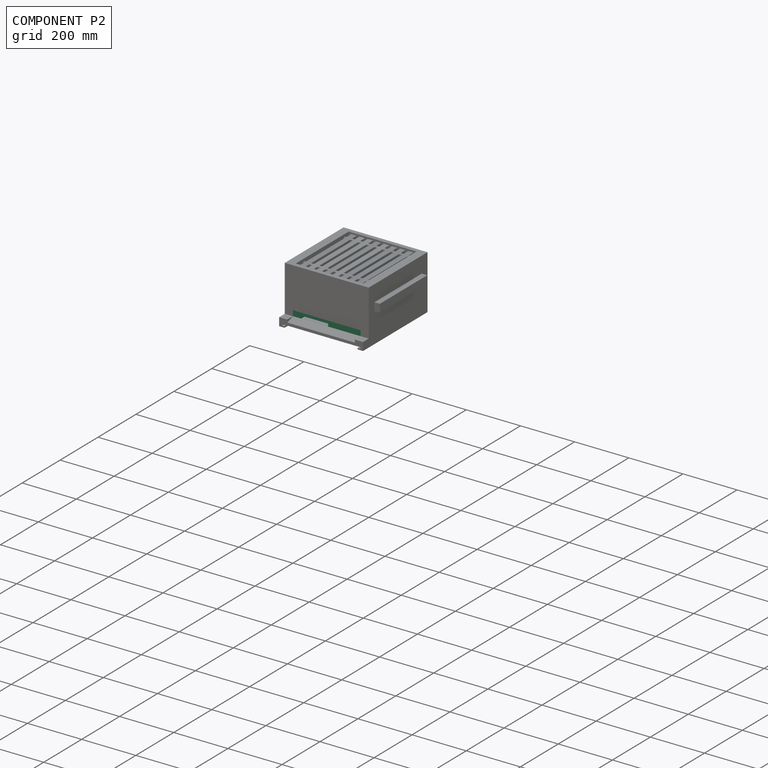
[diagram: component P2 — assembled]
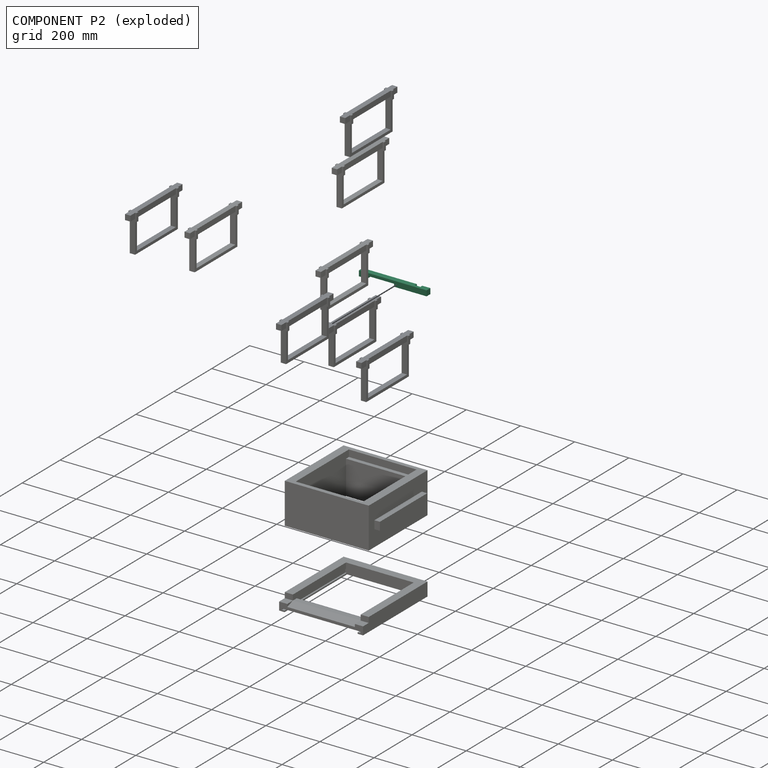
[diagram: component P2 — exploded]
COMPONENT P2 — recipe-attached (CADFS 00818179, mesh-verified: the recipe's output STEP matches this component's geometry to below the mesh-comparison resolution (tessellation chordal tolerance ~0.377 mm)).
Held by: FASTENED mate "Fastened 3" to P10.
Construction recipe (FeatureScript — the CAD program that rebuilds this solid; sketch coordinates are in the units given by the * unit suffixes, e.g. mm):

FeatureScript 1511;
import(path : "onshape/std/geometry.fs", version : "1511.0");
import(path : "onshape/std/common.fs", version : "1511.0");
const mm = millimeter;
const VERTEX = EntityType.VERTEX;
const EDGE = EntityType.EDGE;
const FACE = EntityType.FACE;
const BODY = EntityType.BODY;
function v(x, y){return vector(x, y);}
function OD(order){return orderDisambiguation(order);}
function OSD(set){return originalSetDisambiguation(set);}
function TD(topology){return topologyDisambiguation(topology);}
function TDD(query){return trueDependencyDisambiguation(query);}
function sQuery(a, b, c) {return sketchEntityQuery(a, b, c);}

annotation { "Feature Type Name" : "Feature", "Feature Type Description" : "" }
export const myFeature = defineFeature(function(context is Context, id is Id, definition is map)
    precondition{}
    {
        {
            var Q0;
            Q0=qCreatedBy(makeId("Top.planeOp"),FACE);
            var sketch = newSketch(context, id + "F0", { "sketchPlane" : qUnion([Q0])});
            skLineSegment(sketch, "E0.bottom", {"start": v(125, -10) * mm, "end": v(-125, -10) * mm});
            skLineSegment(sketch, "E0.top", {"start": v(125, 10) * mm, "end": v(-125, 10) * mm});
            skLineSegment(sketch, "E0.left", {"start": v(125, -10) * mm, "end": v(125, 10) * mm});
            skLineSegment(sketch, "E0.right", {"start": v(-125, -10) * mm, "end": v(-125, 10) * mm});
            skPoint(sketch, "E0.middle", {"position": v(0, 0) * mm});
            skSolve(sketch);
        }
        {
            var Q0;
            Q0=makeQuery(id+"F0.imprint","IMPRINT",FACE,{"disambiguationData":[TD([[makeQuery(id+"F0.imprint","IMPRINT",EDGE,{"derivedFrom":sQuery(id+"F0.wireOp",EDGE,"E0.bottom")}),-1.0]])]});
            extrude(context, id + "F1", {"entities" : qUnion([Q0]), "depth" : 20 * mm, "offsetDistance" : 25 * mm});
        }
        {
            var Q0;
            Q0=makeQuery(id+"F1.opExtrude","SWEPT_FACE",FACE,{"disambiguationData":[OSD([sQuery(id+"F0.wireOp",EDGE,"E0.bottom")])]});
            var sketch = newSketch(context, id + "F2", { "sketchPlane" : qUnion([Q0])});
            skLineSegment(sketch, "E1", {"start": v(95, 20) * mm, "end": v(95, 0) * mm});
            skLineSegment(sketch, "E2", {"start": v(95, 0) * mm, "end": v(75, 0) * mm});
            skLineSegment(sketch, "E3", {"start": v(75, 0) * mm, "end": v(75, 20) * mm});
            skLineSegment(sketch, "E4", {"start": v(75, 20) * mm, "end": v(95, 20) * mm});
            skSolve(sketch);
        }
        {
            var Q0;
            Q0=makeQuery(id+"F2.imprint","IMPRINT",FACE,{"disambiguationData":[TD([[makeQuery(id+"F2.imprint","IMPRINT",EDGE,{"derivedFrom":sQuery(id+"F2.wireOp",EDGE,"E1")}),-1.0]])]});
            extrude(context, id + "F3", {"entities" : qUnion([Q0]), "operationType" : NewBodyOperationType.REMOVE, "oppositeDirection" : true, "depth" : 10 * mm, "offsetDistance" : 25 * mm});
        }
        {
            var Q0;
            Q0=makeQuery(id+"F1.opExtrude","CAP_FACE",FACE,{"disambiguationData":[OSD([sQuery(id+"F0.wireOp",EDGE,"E0.bottom"),sQuery(id+"F0.wireOp",EDGE,"E0.top"),sQuery(id+"F0.wireOp",EDGE,"E0.left"),sQuery(id+"F0.wireOp",EDGE,"E0.right")])],"isStart":false});
            var sketch = newSketch(context, id + "F4", { "sketchPlane" : qUnion([Q0])});
            skLineSegment(sketch, "E5", {"start": v(-95, 10) * mm, "end": v(-95, -10) * mm});
            skLineSegment(sketch, "E6", {"start": v(-95, -10) * mm, "end": v(5, -10) * mm});
            skLineSegment(sketch, "E7", {"start": v(5, 10) * mm, "end": v(-95, 10) * mm});
            skLineSegment(sketch, "E8", {"start": v(5, -10) * mm, "end": v(5, 10) * mm});
            skSolve(sketch);
        }
        {
            var Q0;
            Q0=makeQuery(id+"F4.imprint","IMPRINT",FACE,{"disambiguationData":[TD([[makeQuery(id+"F4.imprint","IMPRINT",EDGE,{"derivedFrom":sQuery(id+"F4.wireOp",EDGE,"E5")}),1.0]])]});
            extrude(context, id + "F5", {"entities" : qUnion([Q0]), "operationType" : NewBodyOperationType.REMOVE, "oppositeDirection" : true, "depth" : 10 * mm, "offsetDistance" : 25 * mm});
        }
    });
PROVENANCE & LICENSES
Assembly (occurrences, transforms, mates, per-part STEP geometry): AutoMate dataset, Zenodo record 7776208, CC0.
Construction recipes: CADFS (HuggingFace VladPyatov/CADFS, CC-BY-4.0, layered over the ABC dataset), FeatureScript reconstruction programs keyed by ABC model id.
Join: ABC meta listings map ABC model id -> Onshape documentId; within a shared document, parts are matched by geometric signature (bounding-box dims + volume at 0.1% relative tolerance, exact B-rep face/solid counts).
Verification: 11 of this assembly's 11 components carry a recipe attachment, and every attachment is mesh-verified: the CADFS STEP and the AutoMate member STEP were compared as meshes in their shared local frame (symmetric sampled-point-to-mesh distance); worst across the 11 attachments: below the mesh-comparison resolution (tessellation chordal tolerance ~0.737 mm) on a 491 mm part.
Renders: orthographic iso camera (az 35 / el 25); the floor grid conveys scale (grid pitch printed in each image; no ruler). In the exploded view each component is displaced by its stored offset vector: the offsets alone carry the explosion direction (mate normal/axis signs are not orientation cues and do not encode it), and separation distances are assigned per mate-chain, not proportionally to assembly-order depth.
